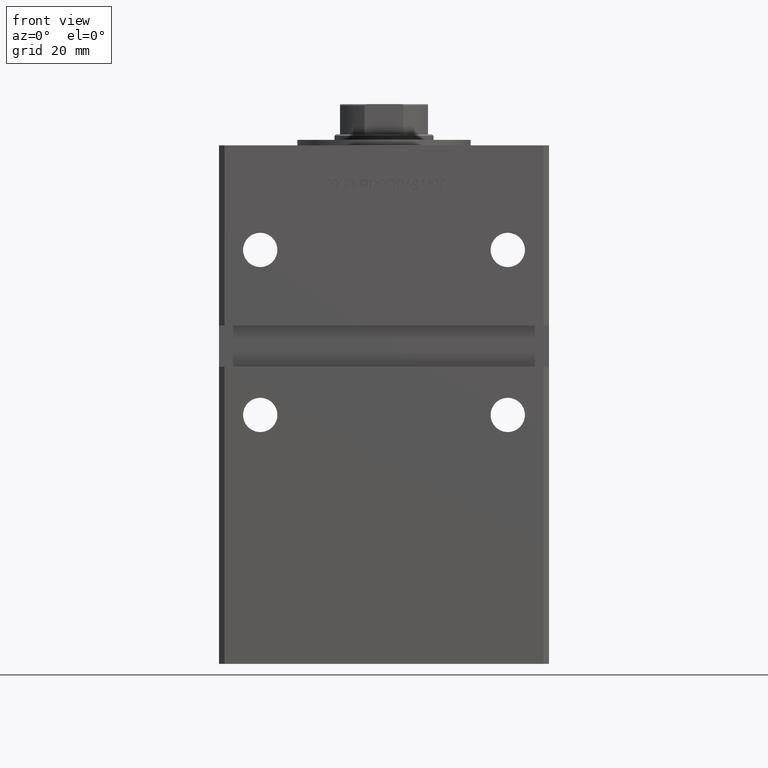
[diagram: clean part render]
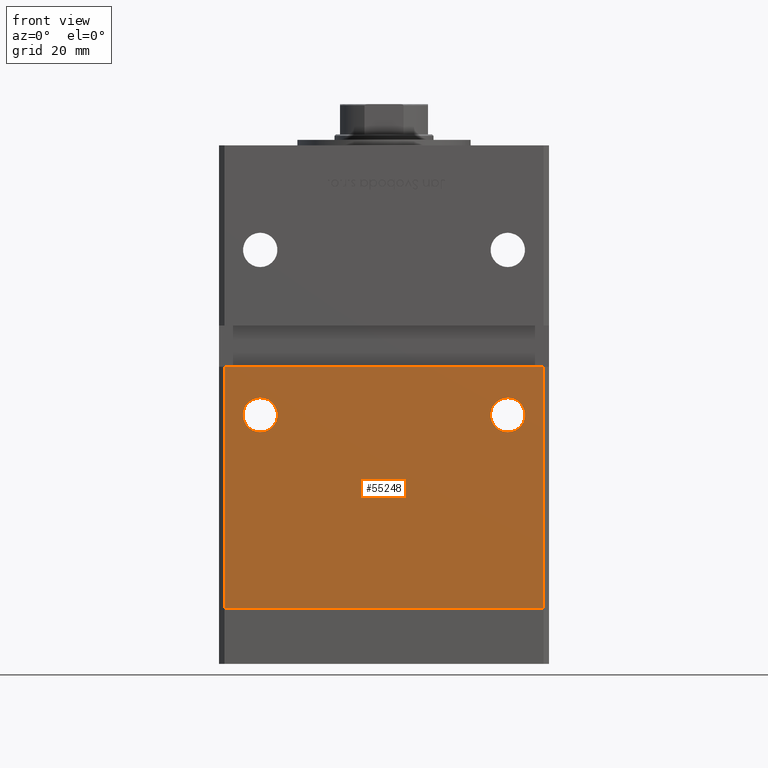
[diagram: same view with one face highlighted and labeled with its STEP entity id]
A machine part, front view. The second image highlights one B-rep face of the part: STEP entity #55248.
In plain terms, the highlighted planar face has unit normal (0, 1, 0).
Its self-contained STEP definition (entity closure, byte-faithful):
#284 = VERTEX_POINT ( 'NONE', #33182 ) ;
#961 = EDGE_CURVE ( 'NONE', #7133, #37490, #9349, .T. ) ;
#964 = ORIENTED_EDGE ( 'NONE', *, *, #961, .T. ) ;
#4116 = CARTESIAN_POINT ( 'NONE',  ( -45.00000000000000000, -50.99999999999999289, 70.50000000000000000 ) ) ;
#6063 = LINE ( 'NONE', #36249, #19064 ) ;
#7133 = VERTEX_POINT ( 'NONE', #46314 ) ;
#7710 = VERTEX_POINT ( 'NONE', #48210 ) ;
#8980 = CARTESIAN_POINT ( 'NONE',  ( -45.00000000000000000, -50.99999999999999289, 70.50000000000000000 ) ) ;
#9349 = CIRCLE ( 'NONE', #20278, 6.250000000000005329 ) ;
#9525 = PLANE ( 'NONE',  #36034 ) ;
#9813 = DIRECTION ( 'NONE',  ( 0.000000000000000000, 1.000000000000000000, 0.000000000000000000 ) ) ;
#10334 = ORIENTED_EDGE ( 'NONE', *, *, #46539, .T. ) ;
#10533 = AXIS2_PLACEMENT_3D ( 'NONE', #23322, #41255, #32689 ) ;
#11989 = EDGE_CURVE ( 'NONE', #284, #7710, #12362, .T. ) ;
#12362 = CIRCLE ( 'NONE', #10533, 6.250000000000005329 ) ;
#12613 = ORIENTED_EDGE ( 'NONE', *, *, #20881, .T. ) ;
#13818 = FACE_OUTER_BOUND ( 'NONE', #17742, .T. ) ;
#14100 = DIRECTION ( 'NONE',  ( 0.000000000000000000, -0.000000000000000000, 1.000000000000000000 ) ) ;
#14326 = DIRECTION ( 'NONE',  ( -0.000000000000000000, -0.000000000000000000, -1.000000000000000000 ) ) ;
#14487 = VECTOR ( 'NONE', #14326, 1000.000000000000000 ) ;
#14542 = CARTESIAN_POINT ( 'NONE',  ( 57.99999999999997868, -50.99999999999999289, 0.000000000000000000 ) ) ;
#16535 = CARTESIAN_POINT ( 'NONE',  ( 57.99999999999997868, -50.99999999999999289, 88.00000000000000000 ) ) ;
#17742 = EDGE_LOOP ( 'NONE', ( #47001, #18104, #25302, #27876 ) ) ;
#18104 = ORIENTED_EDGE ( 'NONE', *, *, #25291, .F. ) ;
#18107 = VERTEX_POINT ( 'NONE', #41973 ) ;
#19026 = VECTOR ( 'NONE', #23942, 1000.000000000000000 ) ;
#19064 = VECTOR ( 'NONE', #44233, 1000.000000000000000 ) ;
#19231 = CARTESIAN_POINT ( 'NONE',  ( -59.99999999999998579, -50.99999999999999289, 88.00000000000000000 ) ) ;
#19398 = EDGE_CURVE ( 'NONE', #30617, #33358, #25937, .T. ) ;
#20189 = EDGE_CURVE ( 'NONE', #30217, #33358, #6063, .T. ) ;
#20225 = EDGE_CURVE ( 'NONE', #18107, #30617, #28002, .T. ) ;
#20278 = AXIS2_PLACEMENT_3D ( 'NONE', #8980, #9813, #52880 ) ;
#20881 = EDGE_CURVE ( 'NONE', #7710, #284, #56365, .T. ) ;
#21505 = DIRECTION ( 'NONE',  ( 0.000000000000000000, 1.000000000000000000, 0.000000000000000000 ) ) ;
#22086 = FACE_BOUND ( 'NONE', #32039, .T. ) ;
#22659 = AXIS2_PLACEMENT_3D ( 'NONE', #29732, #33163, #32888 ) ;
#23159 = CARTESIAN_POINT ( 'NONE',  ( -57.99999999999997868, -50.99999999999999289, 148.5000000000000000 ) ) ;
#23322 = CARTESIAN_POINT ( 'NONE',  ( 45.00000000000000000, -50.99999999999999289, 70.50000000000000000 ) ) ;
#23787 = DIRECTION ( 'NONE',  ( 1.000000000000000000, 0.000000000000000000, 0.000000000000000000 ) ) ;
#23942 = DIRECTION ( 'NONE',  ( 1.000000000000000000, 0.000000000000000000, 0.000000000000000000 ) ) ;
#25291 = EDGE_CURVE ( 'NONE', #18107, #30217, #28046, .T. ) ;
#25302 = ORIENTED_EDGE ( 'NONE', *, *, #20225, .T. ) ;
#25937 = LINE ( 'NONE', #39597, #19026 ) ;
#27876 = ORIENTED_EDGE ( 'NONE', *, *, #19398, .T. ) ;
#28002 = LINE ( 'NONE', #23159, #14487 ) ;
#28046 = LINE ( 'NONE', #19231, #30652 ) ;
#29732 = CARTESIAN_POINT ( 'NONE',  ( 45.00000000000000000, -50.99999999999999289, 70.50000000000000000 ) ) ;
#30217 = VERTEX_POINT ( 'NONE', #16535 ) ;
#30617 = VERTEX_POINT ( 'NONE', #42502 ) ;
#30652 = VECTOR ( 'NONE', #23787, 1000.000000000000000 ) ;
#32039 = EDGE_LOOP ( 'NONE', ( #964, #10334 ) ) ;
#32689 = DIRECTION ( 'NONE',  ( 0.000000000000000000, 0.000000000000000000, 1.000000000000000000 ) ) ;
#32888 = DIRECTION ( 'NONE',  ( 0.000000000000000000, 0.000000000000000000, 1.000000000000000000 ) ) ;
#33163 = DIRECTION ( 'NONE',  ( 0.000000000000000000, 1.000000000000000000, 0.000000000000000000 ) ) ;
#33182 = CARTESIAN_POINT ( 'NONE',  ( 45.00000000000000000, -50.99999999999999289, 64.25000000000000000 ) ) ;
#33358 = VERTEX_POINT ( 'NONE', #14542 ) ;
#34942 = CIRCLE ( 'NONE', #39498, 6.250000000000005329 ) ;
#35725 = DIRECTION ( 'NONE',  ( 0.000000000000000000, 1.000000000000000000, 0.000000000000000000 ) ) ;
#36034 = AXIS2_PLACEMENT_3D ( 'NONE', #44299, #35725, #14100 ) ;
#36249 = CARTESIAN_POINT ( 'NONE',  ( 57.99999999999997868, -50.99999999999999289, 148.5000000000000000 ) ) ;
#37490 = VERTEX_POINT ( 'NONE', #40077 ) ;
#37999 = EDGE_LOOP ( 'NONE', ( #12613, #38888 ) ) ;
#38863 = DIRECTION ( 'NONE',  ( 0.000000000000000000, 0.000000000000000000, 1.000000000000000000 ) ) ;
#38888 = ORIENTED_EDGE ( 'NONE', *, *, #11989, .T. ) ;
#39498 = AXIS2_PLACEMENT_3D ( 'NONE', #4116, #21505, #38863 ) ;
#39597 = CARTESIAN_POINT ( 'NONE',  ( -57.99999999999997868, -50.99999999999999289, 0.000000000000000000 ) ) ;
#40077 = CARTESIAN_POINT ( 'NONE',  ( -45.00000000000000000, -50.99999999999999289, 64.25000000000000000 ) ) ;
#41255 = DIRECTION ( 'NONE',  ( 0.000000000000000000, 1.000000000000000000, 0.000000000000000000 ) ) ;
#41973 = CARTESIAN_POINT ( 'NONE',  ( -57.99999999999997868, -50.99999999999999289, 88.00000000000000000 ) ) ;
#42502 = CARTESIAN_POINT ( 'NONE',  ( -57.99999999999997868, -50.99999999999999289, 0.000000000000000000 ) ) ;
#44233 = DIRECTION ( 'NONE',  ( -0.000000000000000000, -0.000000000000000000, -1.000000000000000000 ) ) ;
#44299 = CARTESIAN_POINT ( 'NONE',  ( -57.99999999999997868, -50.99999999999999289, 148.5000000000000000 ) ) ;
#46314 = CARTESIAN_POINT ( 'NONE',  ( -45.00000000000000000, -50.99999999999999289, 76.75000000000001421 ) ) ;
#46539 = EDGE_CURVE ( 'NONE', #37490, #7133, #34942, .T. ) ;
#47001 = ORIENTED_EDGE ( 'NONE', *, *, #20189, .F. ) ;
#48210 = CARTESIAN_POINT ( 'NONE',  ( 45.00000000000000000, -50.99999999999999289, 76.75000000000001421 ) ) ;
#48586 = FACE_BOUND ( 'NONE', #37999, .T. ) ;
#52880 = DIRECTION ( 'NONE',  ( 0.000000000000000000, 0.000000000000000000, 1.000000000000000000 ) ) ;
#55248 = ADVANCED_FACE ( 'NONE', ( #22086, #48586, #13818 ), #9525, .F. ) ;
#56365 = CIRCLE ( 'NONE', #22659, 6.250000000000005329 ) ;